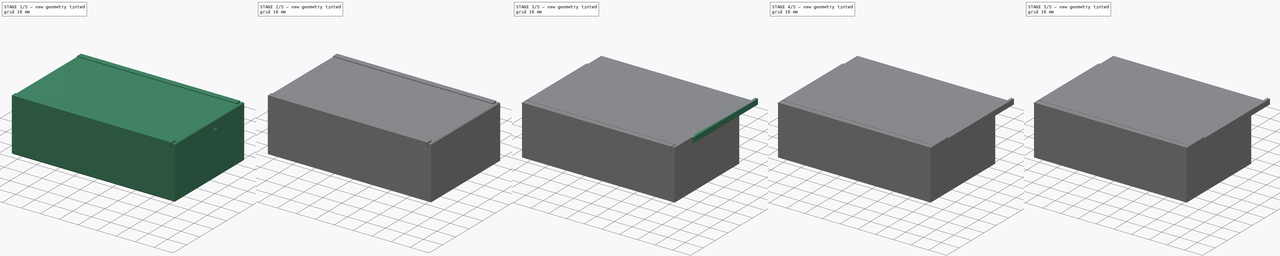
[diagram: build sequence overview — one tinted view per stage of 5, left to right]
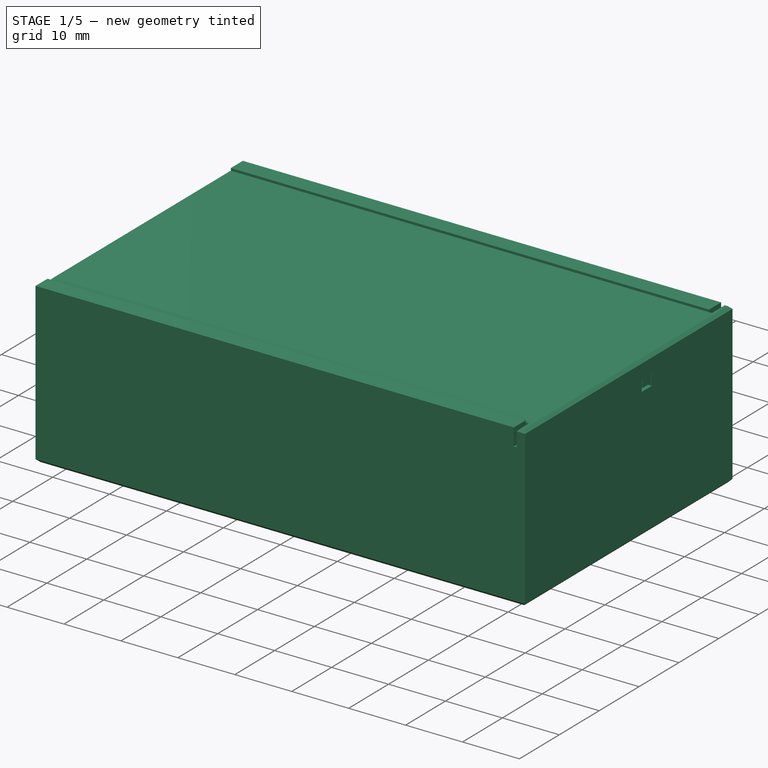
[diagram: stage 1 of 5 — iso view after this stage's code; geometry added in this stage tinted green]
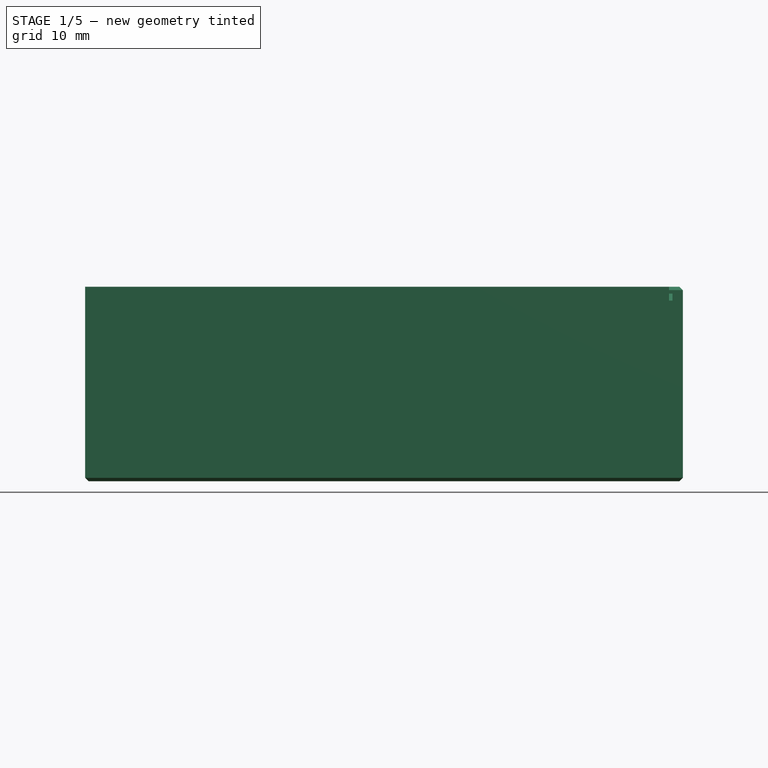
[diagram: stage 1 of 5 — front view after this stage's code; geometry added in this stage tinted green]
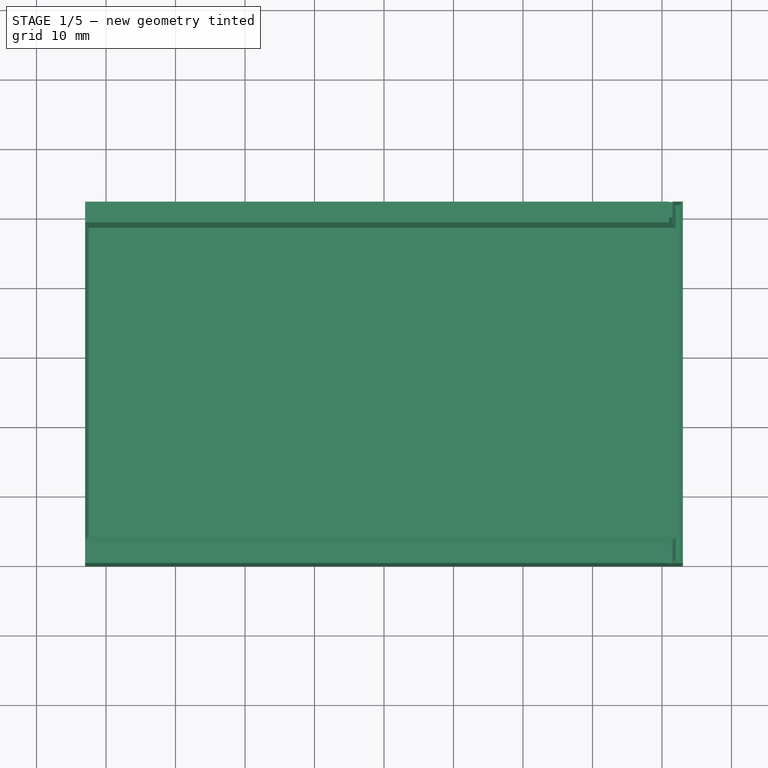
[diagram: stage 1 of 5 — top view after this stage's code; geometry added in this stage tinted green]
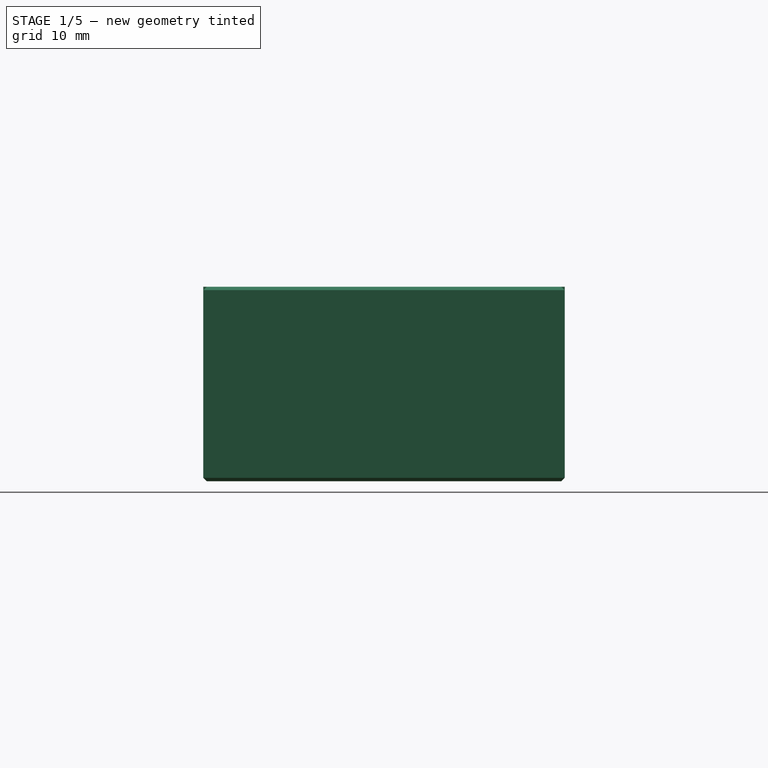
[diagram: stage 1 of 5 — right view after this stage's code; geometry added in this stage tinted green]
FCSTD DOCUMENT  (FreeCAD 0.16R6706 (Git))
Label: ThreeJackCase
License: All rights reserved
LicenseURL: http://en.wikipedia.org/wiki/All_rights_reserved
objects: Part::Feature×15, Sketcher::SketchObject×13, PartDesign::Pad×11, Part::MultiFuse×4, Part::Mirroring×2, PartDesign::Pocket×2, Part::Cut×2, Part::Chamfer×2
note: 64 computed .brp shape members not serialized (recipe doc carries the construction recipe); baked Part::Feature solids carry a one-line shape summary decoded from their .brp

FEATURE [Part::Feature] Cut001  label="partLidLessChamfer"
  shape: bbox 86 x 52 x 3 mm, 27 faces (baked)
FEATURE [Part::Chamfer] Chamfer  label="partLidLessBar"
  Base = -> Cut001
  Edges = 8 edges r=0.5: [Edge1,Edge13,Edge31,Edge32,Edge35,Edge39,Edge41,Edge44]
FEATURE [Part::Feature] Fusion001004001  label="partBaseLessChamfer"
  shape: bbox 86 x 52 x 28 mm, 126 faces (baked)
FEATURE [Part::Chamfer] Chamfer001  label="partBaseLessBarSlot"
  Base = -> Fusion001004001
  Edges = 16 edges r=0.5: [Edge17,Edge26,Edge337,Edge338,Edge339,Edge340,Edge341,Edge342,Edge343,Edge344,Edge345,Edge346,Edge347,Edge348,Edge349,Edge350]
FEATURE [Part::Feature] Pad003003004002002001  label="partlidBar"
  Placement = pos=(0,0,23.55) rot=(0,0,1;0rad)
  shape: bbox 73 x 2 x 3.5 mm, 6 faces (baked)
FEATURE [Part::MultiFuse] Fusion001004002
  Shapes = -> [Chamfer,Pad003003004002002001]
FEATURE [Part::Feature] Fusion001004002001  label="partLidComplete"
  shape: bbox 86 x 52 x 4.45 mm, 40 faces (baked)
FEATURE [Sketcher::SketchObject] Sketch014  label="barSlot"
  Placement = pos=(0,0,0) rot=(0.57735,0.57735,0.57735;2.0944rad)
  sketch-geometry (4):
    g0: LineSegment StartX=-10.75 StartY=25 StartZ=0 EndX=-8.25 EndY=25 EndZ=0
    g1: LineSegment StartX=-8.25 StartY=25 StartZ=0 EndX=-8.25 EndY=23 EndZ=0
    g2: LineSegment StartX=-8.25 StartY=23 StartZ=0 EndX=-10.75 EndY=23 EndZ=0
    g3: LineSegment StartX=-10.75 StartY=23 StartZ=0 EndX=-10.75 EndY=25 EndZ=0
  constraints (12):
    c: Coincident(g0,g1)
    c: Coincident(g1,g2)
    c: Coincident(g2,g3)
    c: Coincident(g3,g0)
    c: Horizontal(g0)
    c: Horizontal(g2)
    c: Vertical(g1)
    c: Vertical(g3)
    c: DistanceY(g1,g1) = 2
    c: DistanceX(g0,g0) = 2.5
    c: DistanceY(g-1,g2) = 23
    c: DistanceX(g2,g-1) = 10.75
FEATURE [PartDesign::Pad] Pad003003004002002002
  Length = 5
  Length2 = 100
  Placement = pos=(0,0,0) rot=(0.57735,0.57735,0.57735;2.0944rad)
  Sketch = -> Sketch014
  Type = 0
FEATURE [Part::Feature] Pad003003004002002002001  label="partBarSlotCutter"
  Placement = pos=(39,0,0) rot=(0.57735,0.57735,0.57735;2.0944rad)
  shape: bbox 5 x 2.5 x 2 mm, 6 faces (baked)
FEATURE [Part::Cut] Cut002  label="partBaseComplete"
  Base = -> Chamfer001
  Tool = -> Pad003003004002002002001
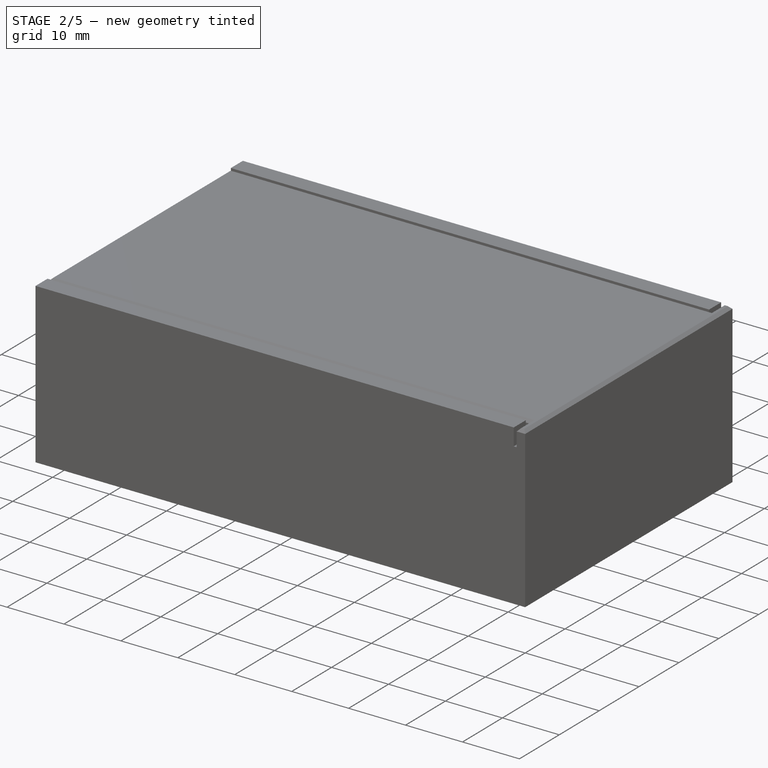
[diagram: stage 2 of 5 — iso view after this stage's code; geometry added in this stage tinted green]
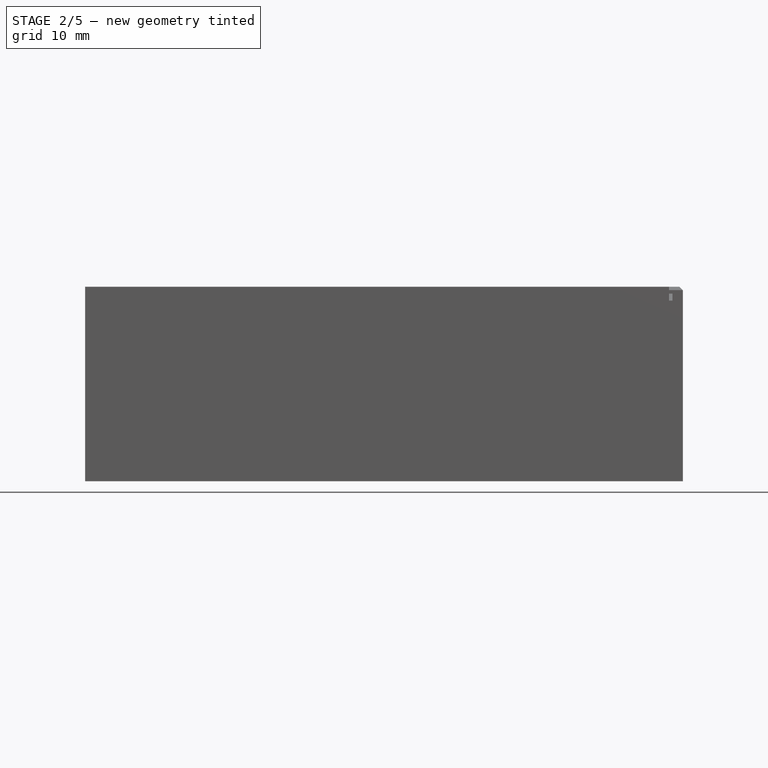
[diagram: stage 2 of 5 — front view after this stage's code; geometry added in this stage tinted green]
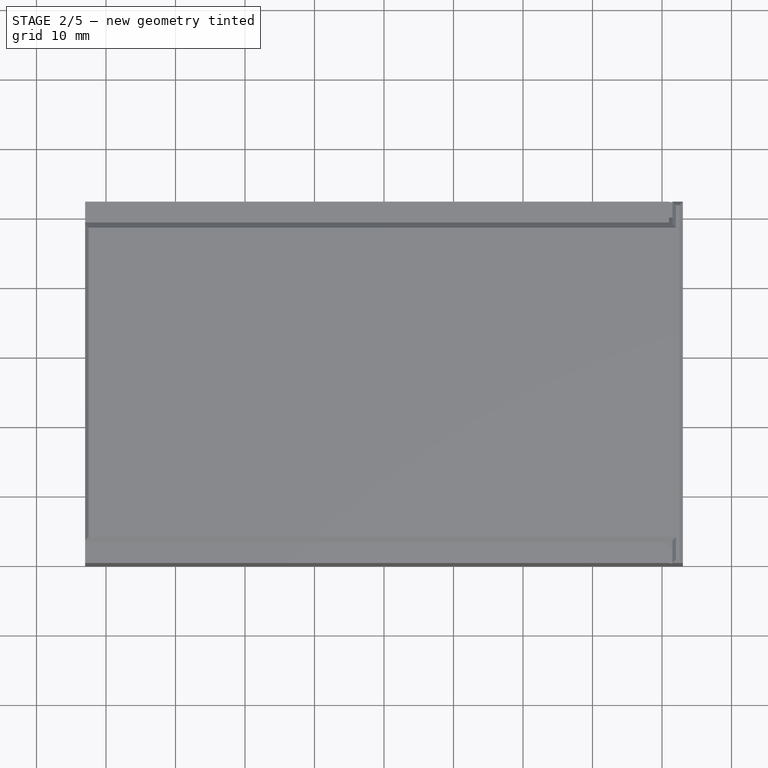
[diagram: stage 2 of 5 — top view after this stage's code; geometry added in this stage tinted green]
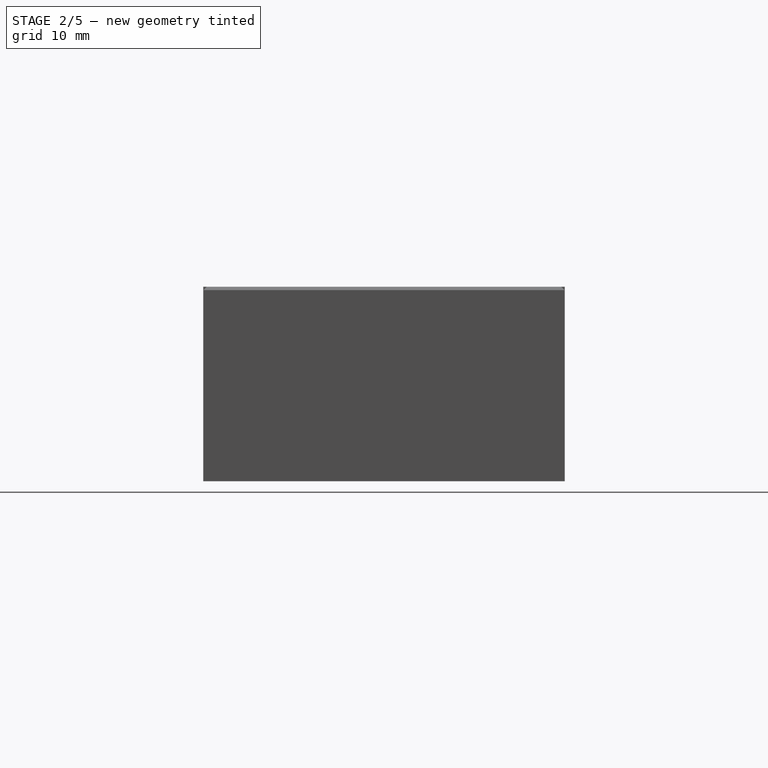
[diagram: stage 2 of 5 — right view after this stage's code; geometry added in this stage tinted green]
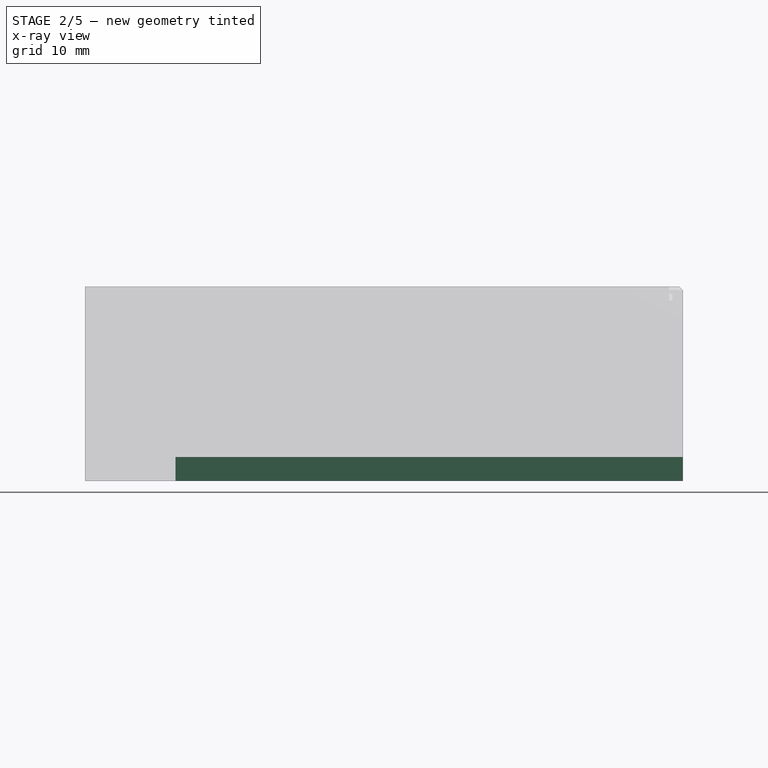
[diagram: stage 2 of 5 — x-ray composite at the front view; earlier geometry ghosted, this stage's added geometry solid]
FEATURE [Part::Feature] Fusion001  label="partJackHolder001"
  shape: bbox 25 x 22.5 x 18 mm, 34 faces (baked)
FEATURE [Part::Feature] Fusion001001  label="partJackHolder002"
  Placement = pos=(-25,0,0) rot=(0,0,1;0rad)
  shape: bbox 25 x 22.5 x 18 mm, 34 faces (baked)
FEATURE [Part::Feature] Fusion001002  label="partJackHolder003"
  Placement = pos=(25,0,0) rot=(0,0,1;0rad)
  shape: bbox 25 x 22.5 x 18 mm, 34 faces (baked)
FEATURE [Part::MultiFuse] Fusion001003  label="partJackHolders"
  Shapes = -> [Fusion001,Fusion001001,Fusion001002]
FEATURE [Part::Feature] Pad003003001  label="partRailFront"
  Placement = pos=(-1,0,0) rot=(0.57735,0.57735,0.57735;2.0944rad)
  shape: bbox 84 x 3 x 5 mm, 11 faces (baked)
FEATURE [Part::Mirroring] Part__Mirroring001  label="partRailBack"
  Base = (0,0,0)
  Normal = (0,1,0)
  Placement = pos=(0,-28,0) rot=(0,0,1;0rad)
  Source = -> Pad003003001
FEATURE [Part::MultiFuse] Fusion001004
  Shapes = -> [Pocket001,Pad003003004001,Fusion001003,Part__Mirroring001,Pad003003001]
FEATURE [Sketcher::SketchObject] Sketch013
  sketch-geometry (4):
    g0: LineSegment StartX=-30 StartY=-8.5 StartZ=0 EndX=43 EndY=-8.5 EndZ=0
    g1: LineSegment StartX=43 StartY=-8.5 StartZ=0 EndX=43 EndY=-10.5 EndZ=0
    g2: LineSegment StartX=43 StartY=-10.5 StartZ=0 EndX=-30 EndY=-10.5 EndZ=0
    g3: LineSegment StartX=-30 StartY=-10.5 StartZ=0 EndX=-30 EndY=-8.5 EndZ=0
  constraints (12):
    c: Coincident(g0,g1)
    c: Coincident(g1,g2)
    c: Coincident(g2,g3)
    c: Coincident(g3,g0)
    c: Horizontal(g0)
    c: Horizontal(g2)
    c: Vertical(g1)
    c: Vertical(g3)
    c: DistanceY(g1,g1) = 2
    c: DistanceX(g0,g0) = 73
    c: DistanceY(g1,g-1) = 10.5
    c: DistanceX(g-1,g1) = 43
FEATURE [PartDesign::Pad] Pad003003004002002
  Length = 3.5
  Length2 = 100
  Sketch = -> Sketch013
  Type = 0
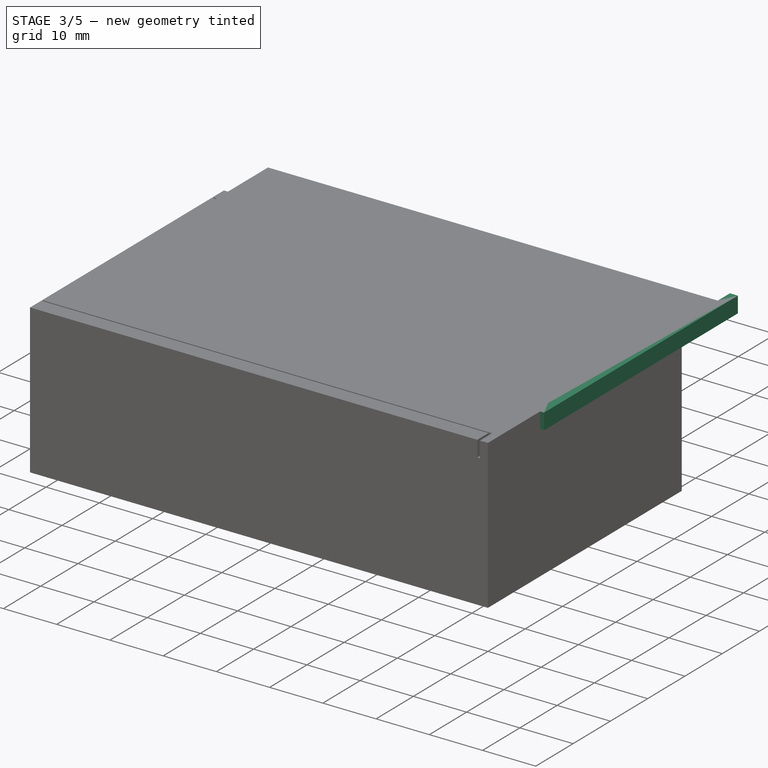
[diagram: stage 3 of 5 — iso view after this stage's code; geometry added in this stage tinted green]
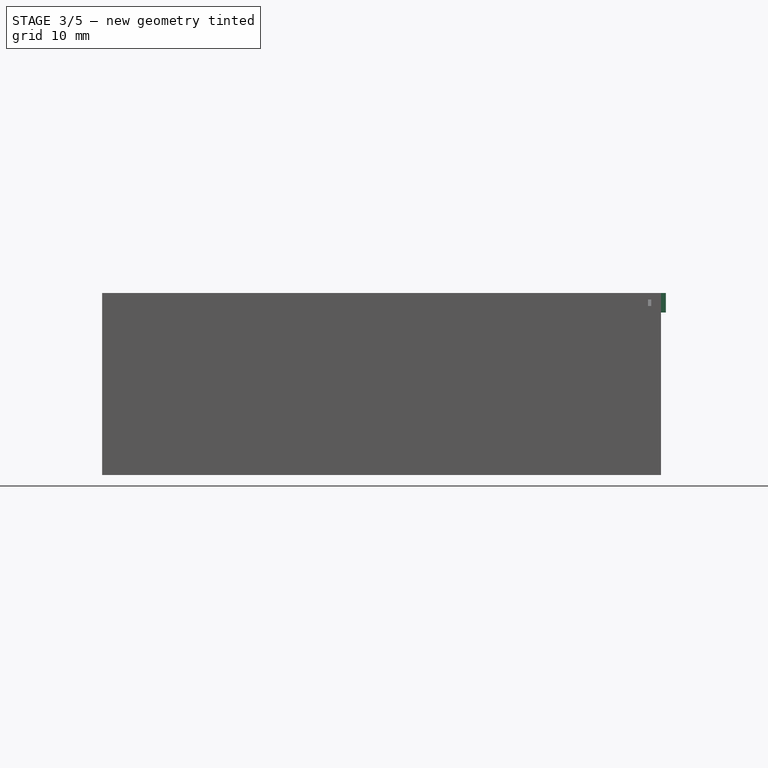
[diagram: stage 3 of 5 — front view after this stage's code; geometry added in this stage tinted green]
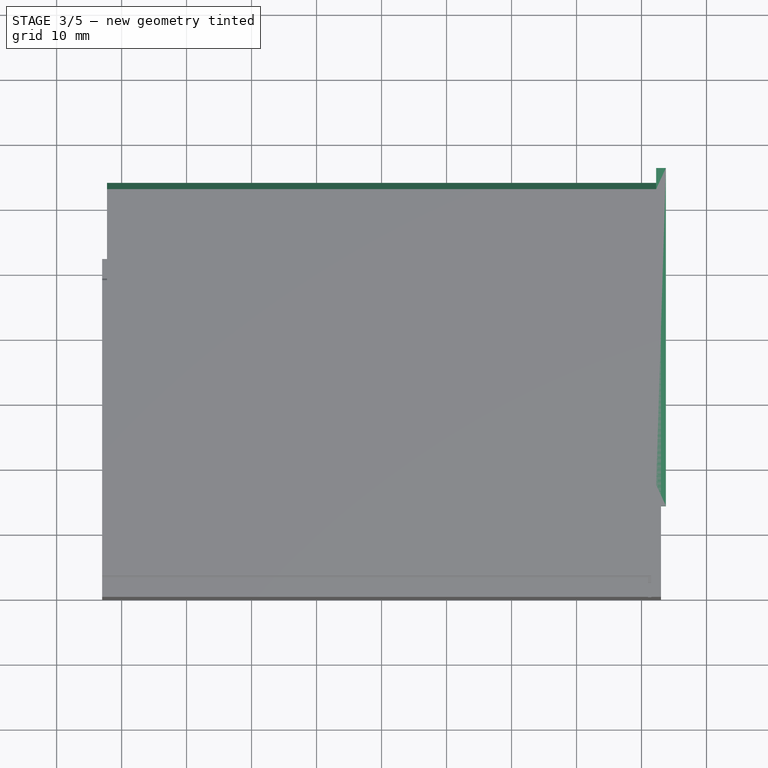
[diagram: stage 3 of 5 — top view after this stage's code; geometry added in this stage tinted green]
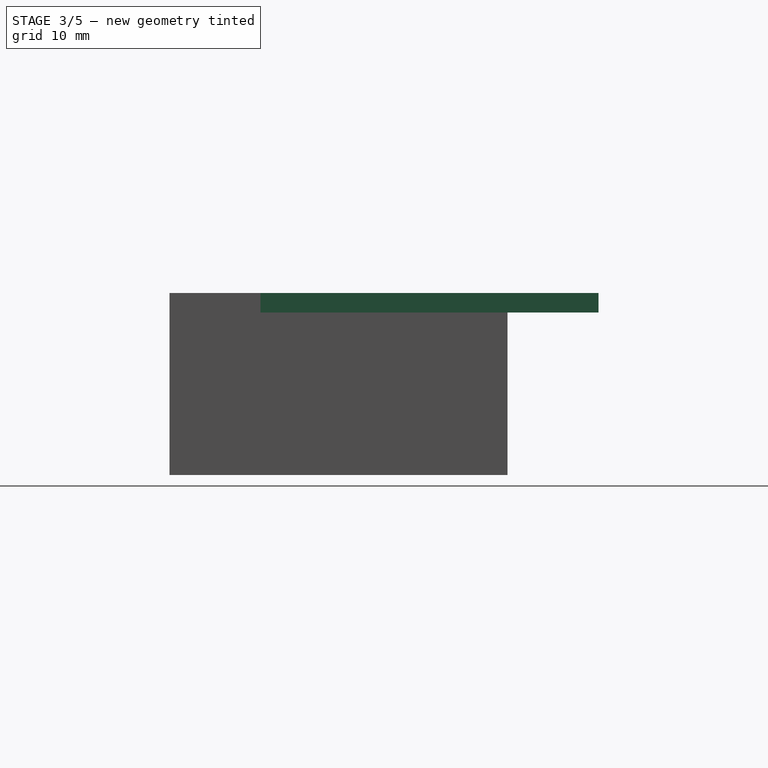
[diagram: stage 3 of 5 — right view after this stage's code; geometry added in this stage tinted green]
FEATURE [Sketcher::SketchObject] Sketch008  label="lidTop"
  Placement = pos=(0,0,0) rot=(0.57735,0.57735,0.57735;2.0944rad)
  sketch-geometry (8):
    g0: LineSegment StartX=22.75 StartY=28 StartZ=0 EndX=-22.75 EndY=28 EndZ=0
    g1: LineSegment StartX=-22.75 StartY=28 StartZ=0 EndX=-22.75 EndY=27 EndZ=0
    g2: LineSegment StartX=-22.75 StartY=27 StartZ=0 EndX=-23.75 EndY=26 EndZ=0
    g3: LineSegment StartX=-23.75 StartY=26 StartZ=0 EndX=-23.75 EndY=25 EndZ=0
    g4: LineSegment StartX=-23.75 StartY=25 StartZ=0 EndX=23.75 EndY=25 EndZ=0
    g5: LineSegment StartX=23.75 StartY=25 StartZ=0 EndX=23.75 EndY=26 EndZ=0
    g6: LineSegment StartX=23.75 StartY=26 StartZ=0 EndX=22.75 EndY=27 EndZ=0
    g7: LineSegment StartX=22.75 StartY=27 StartZ=0 EndX=22.75 EndY=28 EndZ=0
  constraints (24):
    c: Horizontal(g0)
    c: Coincident(g0,g1)
    c: Coincident(g1,g2)
    c: Coincident(g2,g3)
    c: Vertical(g3)
    c: Coincident(g3,g4)
    c: Horizontal(g4)
    c: Coincident(g4,g5)
    c: Vertical(g5)
    c: Coincident(g5,g6)
    c: Coincident(g6,g7)
    c: Vertical(g7)
    c: Coincident(g0,g7)
    c: Vertical(g1)
    c: Angle(g1,g2) = 2.35619
    c: Angle(g6,g7) = 2.35619
    c: DistanceY(g3,g3) = 1
    c: DistanceY(g2,g2) = 1
    c: DistanceY(g5,g5) = 1
    c: DistanceY(g6,g6) = 1
    c: DistanceY(g7,g7) = 1
    c: Symmetric(g4,g3,g-2)
    c: DistanceX(g4,g4) = 47.5
    c: DistanceY(g-1,g3) = 25
FEATURE [PartDesign::Pad] Pad003003002
  Length = 84.5
  Length2 = 100
  Midplane = true
  Placement = pos=(0,0,0) rot=(0.57735,0.57735,0.57735;2.0944rad)
  Sketch = -> Sketch008
  Type = 0
FEATURE [Sketcher::SketchObject] Sketch009  label="lidCap"
  ExternalGeometry = -> [Pad003003002]
  Placement = pos=(42.25,0,0) rot=(0.57735,0.57735,0.57735;2.0944rad)
  Support = -> Pad003003002 [Face10]
  sketch-geometry (4):
    g0: LineSegment StartX=-26 StartY=28 StartZ=0 EndX=26 EndY=28 EndZ=0
    g1: LineSegment StartX=26 StartY=28 StartZ=0 EndX=26 EndY=25 EndZ=0
    g2: LineSegment StartX=26 StartY=25 StartZ=0 EndX=-26 EndY=25 EndZ=0
    g3: LineSegment StartX=-26 StartY=25 StartZ=0 EndX=-26 EndY=28 EndZ=0
  constraints (12):
    c: Coincident(g0,g1)
    c: Coincident(g1,g2)
    c: Coincident(g2,g3)
    c: Coincident(g3,g0)
    c: Horizontal(g0)
    c: Horizontal(g2)
    c: Vertical(g1)
    c: Vertical(g3)
    c: Symmetric(g1,g2,g-2)
    c: DistanceX(g2,g2) = 52
    c: PointOnObject(g1,g-3)
    c: PointOnObject(g0,g-4)
FEATURE [PartDesign::Pad] Pad003003003
  Length = 1.5
  Length2 = 100
  Placement = pos=(0,0,0) rot=(0.57735,0.57735,0.57735;2.0944rad)
  Sketch = -> Sketch009
  Type = 0
FEATURE [Part::Feature] Pocket002001  label="lidLessNotch"
  Placement = pos=(-0.75,-14,0) rot=(0.57735,0.57735,0.57735;2.0944rad)
  shape: bbox 86 x 52 x 3 mm, 21 faces (baked)
FEATURE [Sketcher::SketchObject] Sketch011  label="snap"
  Placement = pos=(0,0,0) rot=(-1,0,0;4.71239rad)
  sketch-geometry (8):
    g0: LineSegment StartX=-43 StartY=25 StartZ=0 EndX=-41 EndY=25 EndZ=0
    g1: LineSegment StartX=-41 StartY=25 StartZ=0 EndX=-40 EndY=26 EndZ=0
    g2: LineSegment StartX=-40 StartY=26 StartZ=0 EndX=-39 EndY=26 EndZ=0
    g3: LineSegment StartX=-39 StartY=26 StartZ=0 EndX=-38 EndY=25 EndZ=0
    g4: LineSegment StartX=-38 StartY=25 StartZ=0 EndX=-38 EndY=24 EndZ=0
    g5: LineSegment StartX=-38 StartY=24 StartZ=0 EndX=-41 EndY=21 EndZ=0
    g6: LineSegment StartX=-41 StartY=21 StartZ=0 EndX=-43 EndY=21 EndZ=0
    g7: LineSegment StartX=-43 StartY=21 StartZ=0 EndX=-43 EndY=25 EndZ=0
  constraints (24):
    c: Horizontal(g0)
    c: Coincident(g0,g1)
    c: Coincident(g1,g2)
    c: Horizontal(g2)
    c: Coincident(g2,g3)
    c: Coincident(g3,g4)
    c: Vertical(g4)
    c: Coincident(g4,g5)
    c: Coincident(g5,g6)
    c: Coincident(g6,g7)
    c: Vertical(g7)
    c: Coincident(g0,g7)
    c: Horizontal(g6)
    c: Angle(g4,g5) = 2.35619
    c: Angle(g3,g4) = 2.35619
    c: Angle(g1,g0) = 2.35619
    c: DistanceX(g6,g6) = 2
    c: DistanceX(g0,g0) = 2
    c: DistanceX(g1,g1) = 1
    c: DistanceX(g2,g2) = 1
    c: DistanceX(g3,g3) = 1
    c: DistanceY(g4,g4) = 1
    c: DistanceX(g6,g-1) = 43
    c: DistanceY(g-1,g0) = 25
FEATURE [PartDesign::Pad] Pad003003004
  Length = 5
  Length2 = 100
  Midplane = true
  Placement = pos=(0,0,0) rot=(-1,0,0;4.71239rad)
  Sketch = -> Sketch011
  Type = 0
FEATURE [Part::Feature] Pad003003004001  label="partSnap"
  Placement = pos=(0,-14,-0.5) rot=(1,0,0;1.5708rad)
  shape: bbox 5 x 5 x 5 mm, 10 faces (baked)
FEATURE [Sketcher::SketchObject] Sketch012  label="notchCutout"
  Placement = pos=(0,0,0) rot=(-1,0,0;4.71239rad)
  sketch-geometry (8):
    g0: LineSegment StartX=-38 StartY=21 StartZ=0 EndX=-38 EndY=25 EndZ=0
    g1: LineSegment StartX=-38 StartY=25 StartZ=0 EndX=-39 EndY=26 EndZ=0
    g2: LineSegment StartX=-39 StartY=26 StartZ=0 EndX=-40 EndY=26 EndZ=0
    g3: LineSegment StartX=-40 StartY=26 StartZ=0 EndX=-41 EndY=25 EndZ=0
    g4: LineSegment StartX=-41 StartY=25 StartZ=0 EndX=-42 EndY=25 EndZ=0
    g5: LineSegment StartX=-42 StartY=25 StartZ=0 EndX=-43 EndY=26 EndZ=0
    g6: LineSegment StartX=-43 StartY=26 StartZ=0 EndX=-43 EndY=21 EndZ=0
    g7: LineSegment StartX=-43 StartY=21 StartZ=0 EndX=-38 EndY=21 EndZ=0
  constraints (24):
    c: Vertical(g0)
    c: Coincident(g0,g1)
    c: Coincident(g1,g2)
    c: Horizontal(g2)
    c: Coincident(g2,g3)
    c: Coincident(g3,g4)
    c: Horizontal(g4)
    c: Coincident(g4,g5)
    c: Coincident(g5,g6)
    c: Vertical(g6)
    c: Coincident(g6,g7)
    c: Horizontal(g7)
    c: Coincident(g0,g7)
    c: Angle(g2,g1) = 2.35619
    c: Angle(g3,g2) = 2.35619
    c: Angle(g4,g5) = 2.35619
    c: DistanceX(g1,g1) = 1
    c: DistanceX(g2,g2) = 1
    c: DistanceX(g3,g3) = 1
    c: DistanceX(g4,g4) = 1
    c: DistanceX(g5,g5) = 1
    c: DistanceY(g0,g0) = 4
    c: DistanceX(g5,g-1) = 43
    c: DistanceY(g-1,g0) = 25
FEATURE [PartDesign::Pad] Pad003003004002
  Length = 7
  Length2 = 100
  Midplane = true
  Placement = pos=(0,0,0) rot=(-1,0,0;4.71239rad)
  Sketch = -> Sketch012
  Type = 0
FEATURE [Part::Feature] Pad003003004002001  label="partNotchCutout"
  Placement = pos=(0,-14,0) rot=(1,0,0;1.5708rad)
  shape: bbox 5 x 7 x 5 mm, 10 faces (baked)
FEATURE [Part::Cut] Cut
  Base = -> Pocket002001
  Tool = -> Pad003003004002001
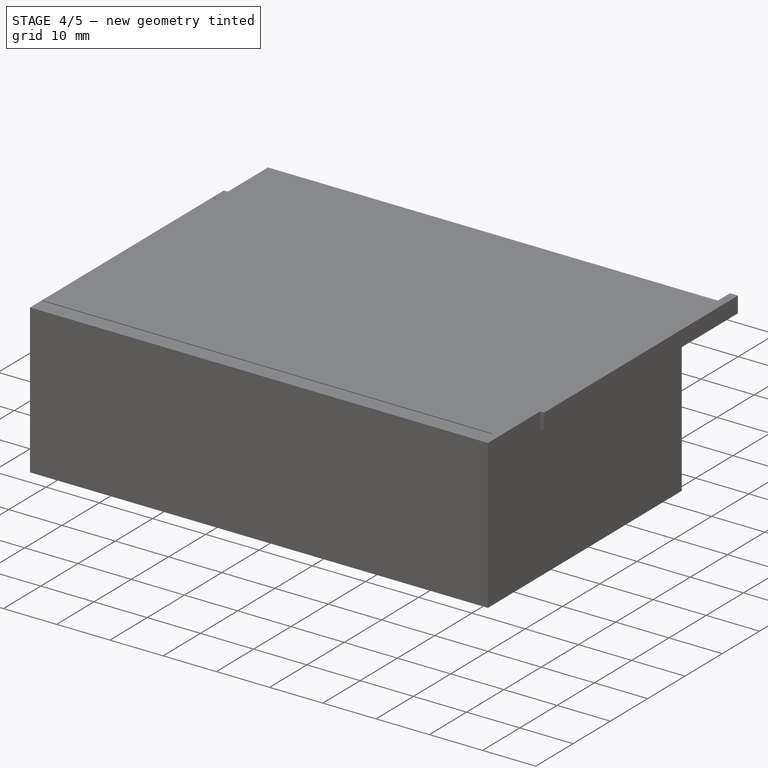
[diagram: stage 4 of 5 — iso view after this stage's code; geometry added in this stage tinted green]
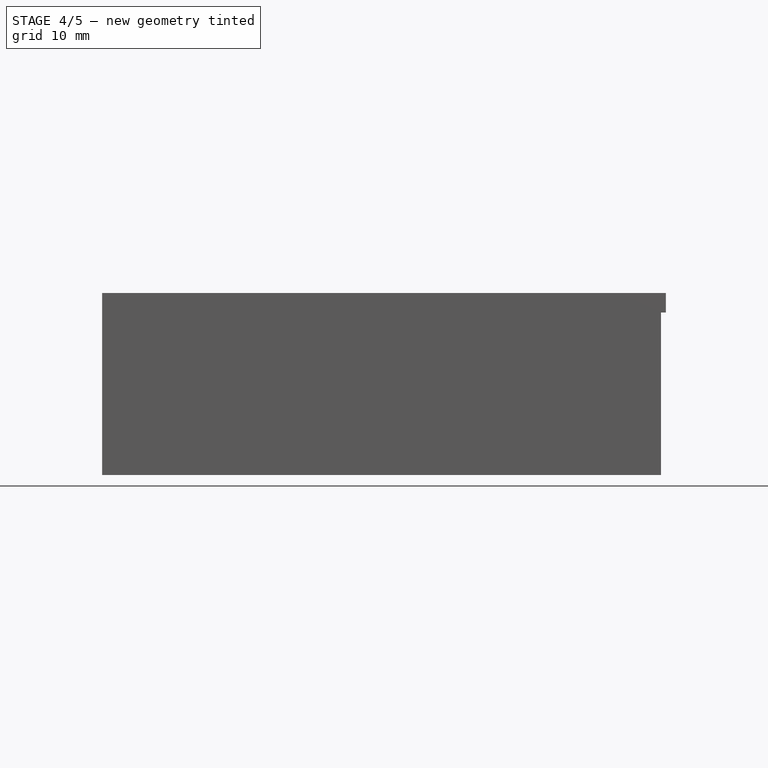
[diagram: stage 4 of 5 — front view after this stage's code; geometry added in this stage tinted green]
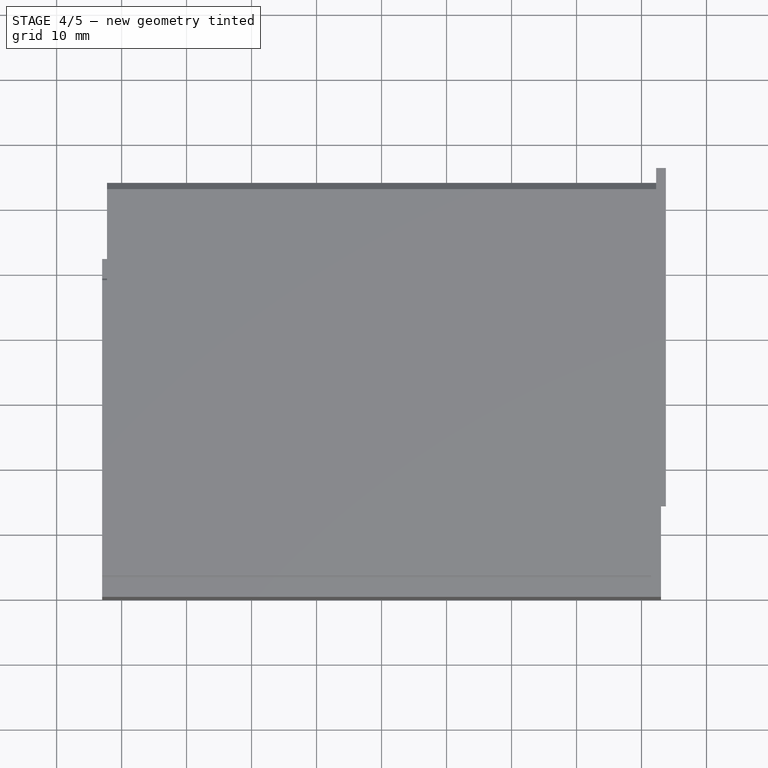
[diagram: stage 4 of 5 — top view after this stage's code; geometry added in this stage tinted green]
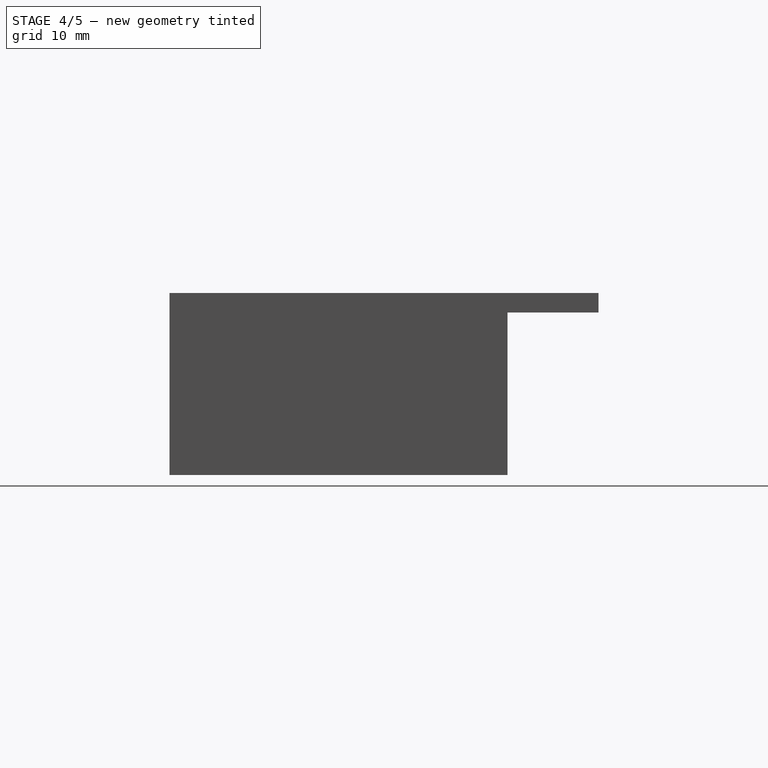
[diagram: stage 4 of 5 — right view after this stage's code; geometry added in this stage tinted green]
FEATURE [PartDesign::Pad] Pad
  Length = 25
  Length2 = 100
  Sketch = -> Sketch
  Type = 0
FEATURE [Sketcher::SketchObject] Sketch005  label="baseBottom"
  ExternalGeometry = -> [Pad]
  Placement = pos=(0,0,0) rot=(1,0,0;3.14159rad)
  Support = -> Pad [Face9]
  sketch-geometry (4):
    g0: LineSegment StartX=-43 StartY=40 StartZ=0 EndX=43 EndY=40 EndZ=0
    g1: LineSegment StartX=43 StartY=40 StartZ=0 EndX=43 EndY=-12 EndZ=0
    g2: LineSegment StartX=43 StartY=-12 StartZ=0 EndX=-43 EndY=-12 EndZ=0
    g3: LineSegment StartX=-43 StartY=-12 StartZ=0 EndX=-43 EndY=40 EndZ=0
  constraints (10):
    c: Coincident(g0,g1)
    c: Coincident(g1,g2)
    c: Coincident(g2,g3)
    c: Coincident(g3,g0)
    c: Horizontal(g0)
    c: Horizontal(g2)
    c: Vertical(g1)
    c: Vertical(g3)
    c: Coincident(g-3,g0)
    c: Coincident(g-4,g1)
FEATURE [PartDesign::Pad] Pad003002
  Length = 2
  Length2 = 100
  Reversed = true
  Sketch = -> Sketch005
  Type = 0
FEATURE [Part::Feature] Pocket001  label="partBasePlain"
  shape: bbox 86 x 52 x 25 mm, 28 faces (baked)
FEATURE [Sketcher::SketchObject] Sketch007  label="rail"
  Placement = pos=(0,0,0) rot=(0.57735,0.57735,0.57735;2.0944rad)
  sketch-geometry (9):
    g0: LineSegment StartX=-40 StartY=28 StartZ=0 EndX=-37 EndY=28 EndZ=0
    g1: LineSegment StartX=-37 StartY=28 StartZ=0 EndX=-37 EndY=27 EndZ=0
    g2: LineSegment StartX=-37 StartY=27 StartZ=0 EndX=-38 EndY=26 EndZ=0
    g3: LineSegment StartX=-38 StartY=26 StartZ=0 EndX=-38 EndY=25 EndZ=0
    g4: LineSegment StartX=-38 StartY=25 StartZ=0 EndX=-37 EndY=25 EndZ=0
    g5: LineSegment StartX=-37 StartY=25 StartZ=0 EndX=-37 EndY=24 EndZ=0
    g6: LineSegment StartX=-37 StartY=24 StartZ=0 EndX=-38 EndY=23 EndZ=0
    g7: LineSegment StartX=-38 StartY=23 StartZ=0 EndX=-40 EndY=23 EndZ=0
    g8: LineSegment StartX=-40 StartY=23 StartZ=0 EndX=-40 EndY=28 EndZ=0
  constraints (27):
    c: Horizontal(g0)
    c: Coincident(g0,g1)
    c: Vertical(g1)
    c: Coincident(g1,g2)
    c: Coincident(g2,g3)
    c: Vertical(g3)
    c: Coincident(g3,g4)
    c: Horizontal(g4)
    c: Coincident(g4,g5)
    c: Vertical(g5)
    c: Coincident(g5,g6)
    c: Coincident(g6,g7)
    c: Horizontal(g7)
    c: Coincident(g7,g8)
    c: Vertical(g8)
    c: Coincident(g0,g8)
    c: Angle(g5,g6) = 2.35619
    c: Angle(g1,g2) = 2.35619
    c: DistanceX(g7,g7) = 2
    c: DistanceY(g6,g6) = 1
    c: DistanceY(g5,g5) = 1
    c: DistanceY(g3,g3) = 1
    c: DistanceY(g2,g2) = 1
    c: DistanceY(g1,g1) = 1
    c: DistanceX(g4,g4) = 1
    c: DistanceY(g-1,g7) = 23
    c: DistanceX(g7,g-1) = 40
FEATURE [PartDesign::Pad] Pad003003
  Length = 84
  Length2 = 100
  Midplane = true
  Placement = pos=(0,0,0) rot=(0.57735,0.57735,0.57735;2.0944rad)
  Sketch = -> Sketch007
  Type = 0
FEATURE [Sketcher::SketchObject] Sketch010  label="lidBigCutout"
  ExternalGeometry = -> [Pad003003003]
  Placement = pos=(0,0,25) rot=(0.707107,0.707107,0;3.14159rad)
  Support = -> Pad003003003 [Face6]
  sketch-geometry (4):
    g0: LineSegment StartX=-21.75 StartY=42.25 StartZ=0 EndX=21.75 EndY=42.25 EndZ=0
    g1: LineSegment StartX=21.75 StartY=42.25 StartZ=0 EndX=21.75 EndY=-36.25 EndZ=0
    g2: LineSegment StartX=21.75 StartY=-36.25 StartZ=0 EndX=-21.75 EndY=-36.25 EndZ=0
    g3: LineSegment StartX=-21.75 StartY=-36.25 StartZ=0 EndX=-21.75 EndY=42.25 EndZ=0
  constraints (12):
    c: Coincident(g0,g1)
    c: Coincident(g1,g2)
    c: Coincident(g2,g3)
    c: Coincident(g3,g0)
    c: Horizontal(g0)
    c: Horizontal(g2)
    c: Vertical(g1)
    c: Vertical(g3)
    c: Symmetric(g1,g2,g-2)
    c: PointOnObject(g0,g-5)
    c: DistanceX(g-3,g2) = 2
    c: DistanceY(g-6,g2) = 6
FEATURE [PartDesign::Pocket] Pocket002
  Length = 2
  Placement = pos=(0,0,0) rot=(0.57735,0.57735,0.57735;2.0944rad)
  Sketch = -> Sketch010
  Type = 0
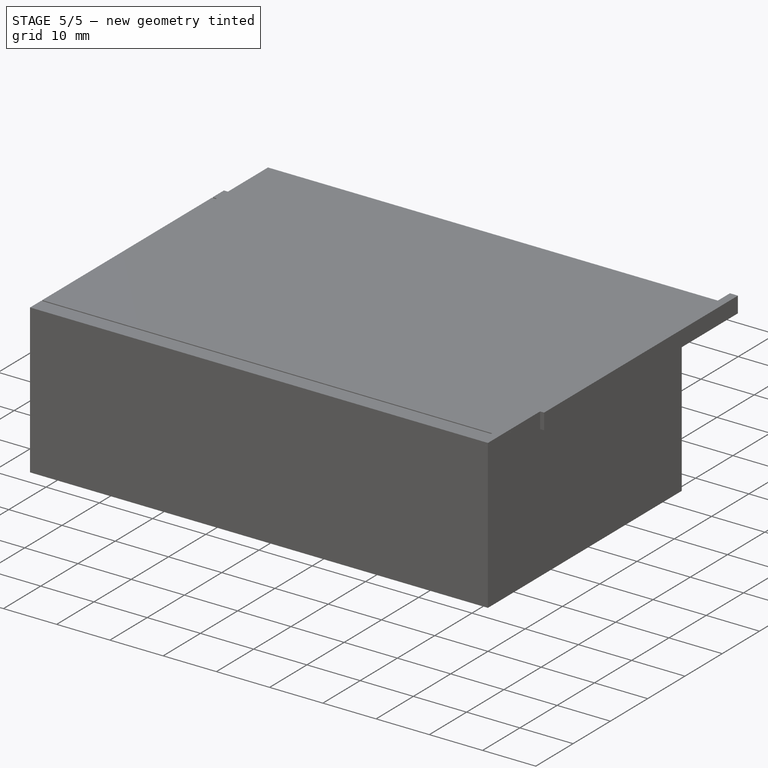
[diagram: stage 5 of 5 — iso view after this stage's code; geometry added in this stage tinted green]
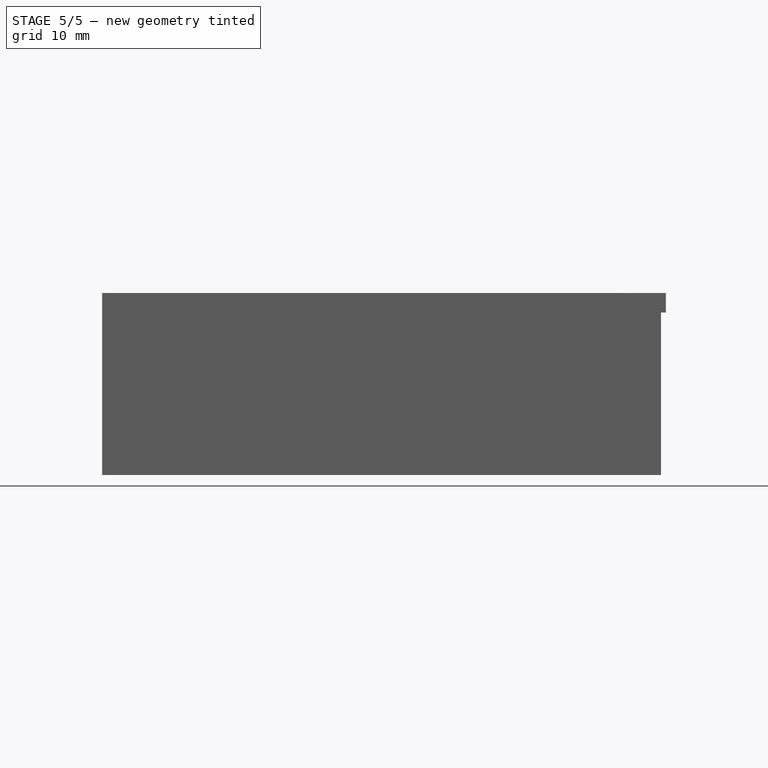
[diagram: stage 5 of 5 — front view after this stage's code; geometry added in this stage tinted green]
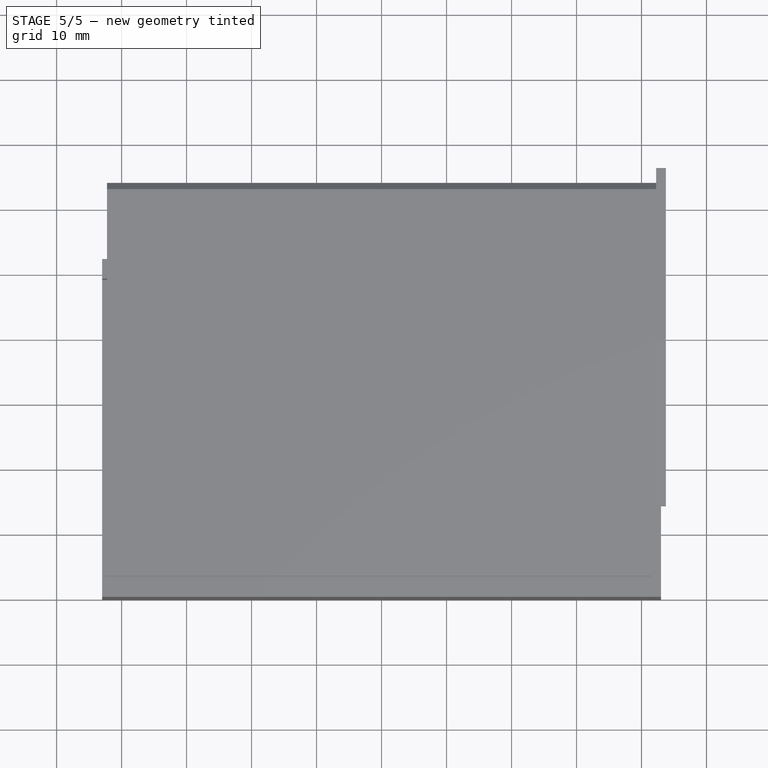
[diagram: stage 5 of 5 — top view after this stage's code; geometry added in this stage tinted green]
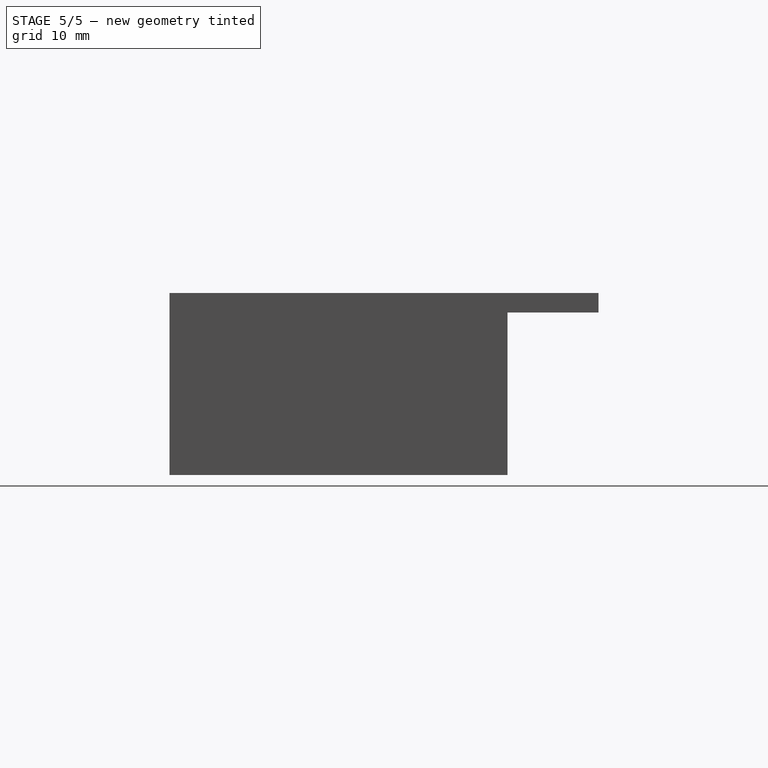
[diagram: stage 5 of 5 — right view after this stage's code; geometry added in this stage tinted green]
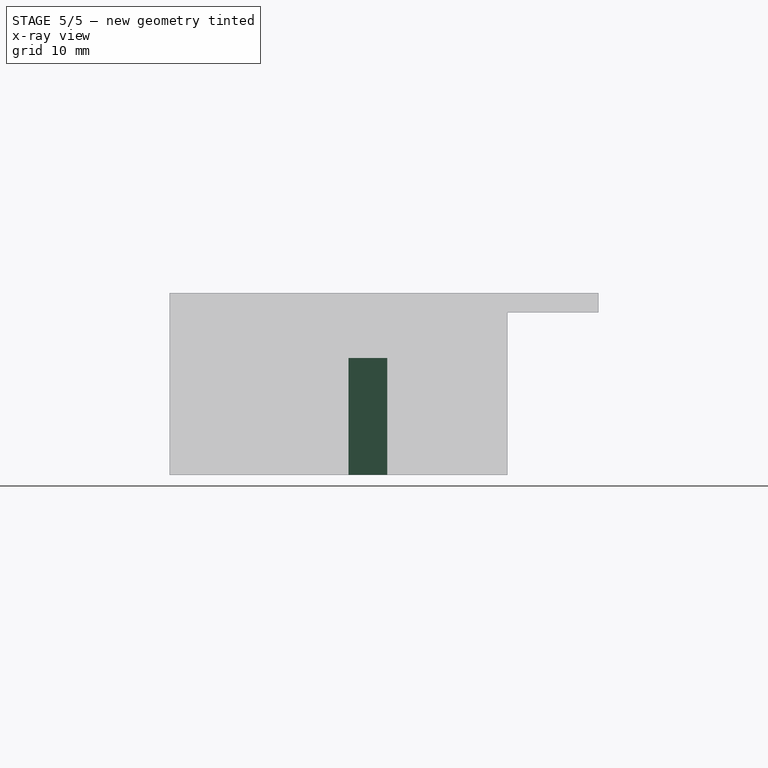
[diagram: stage 5 of 5 — x-ray composite at the right view; earlier geometry ghosted, this stage's added geometry solid]
FEATURE [Sketcher::SketchObject] Sketch  label="baseWalls"
  sketch-geometry (8):
    g0: LineSegment StartX=-41 StartY=10 StartZ=0 EndX=41 EndY=10 EndZ=0
    g1: LineSegment StartX=41 StartY=10 StartZ=0 EndX=41 EndY=-38 EndZ=0
    g2: LineSegment StartX=41 StartY=-38 StartZ=0 EndX=-41 EndY=-38 EndZ=0
    g3: LineSegment StartX=-41 StartY=-38 StartZ=0 EndX=-41 EndY=10 EndZ=0
    g4: LineSegment StartX=-43 StartY=12 StartZ=0 EndX=43 EndY=12 EndZ=0
    g5: LineSegment StartX=43 StartY=12 StartZ=0 EndX=43 EndY=-40 EndZ=0
    g6: LineSegment StartX=43 StartY=-40 StartZ=0 EndX=-43 EndY=-40 EndZ=0
    g7: LineSegment StartX=-43 StartY=-40 StartZ=0 EndX=-43 EndY=12 EndZ=0
  constraints (24):
    c: Coincident(g0,g1)
    c: Coincident(g1,g2)
    c: Coincident(g2,g3)
    c: Coincident(g3,g0)
    c: Horizontal(g0)
    c: Horizontal(g2)
    c: Vertical(g1)
    c: Vertical(g3)
    c: Symmetric(g0,g0,g-2)
    c: DistanceY(g-1,g0) = 10
    c: DistanceX(g0,g0) = 82
    c: DistanceY(g1,g-1) = 38
    c: Coincident(g4,g5)
    c: Coincident(g5,g6)
    c: Coincident(g6,g7)
    c: Coincident(g7,g4)
    c: Horizontal(g4)
    c: Horizontal(g6)
    c: Vertical(g5)
    c: Vertical(g7)
    c: DistanceY(g0,g4) = 2
    c: DistanceX(g4,g0) = 2
    c: DistanceY(g5,g1) = 2
    c: DistanceX(g1,g5) = 2
FEATURE [Sketcher::SketchObject] Sketch003  label="jackWalls"
  sketch-geometry (12):
    g0: LineSegment StartX=8 StartY=-8 StartZ=0 EndX=8 EndY=8 EndZ=0
    g1: LineSegment StartX=8 StartY=8 StartZ=0 EndX=-8 EndY=8 EndZ=0
    g2: LineSegment StartX=-8 StartY=8 StartZ=0 EndX=-8 EndY=-8 EndZ=0
    g3: LineSegment StartX=-8 StartY=-8 StartZ=0 EndX=-1.5 EndY=-8 EndZ=0
    g4: LineSegment StartX=-1.5 StartY=-8 StartZ=0 EndX=-1.5 EndY=-9.5 EndZ=0
    g5: LineSegment StartX=-1.5 StartY=-9.5 StartZ=0 EndX=1.5 EndY=-9.5 EndZ=0
    g6: LineSegment StartX=1.5 StartY=-9.5 StartZ=0 EndX=1.5 EndY=-8 EndZ=0
    g7: LineSegment StartX=1.5 StartY=-8 StartZ=0 EndX=8 EndY=-8 EndZ=0
    g8: LineSegment StartX=-10 StartY=10 StartZ=0 EndX=10 EndY=10 EndZ=0
    g9: LineSegment StartX=10 StartY=10 StartZ=0 EndX=10 EndY=-11 EndZ=0
    g10: LineSegment StartX=10 StartY=-11 StartZ=0 EndX=-10 EndY=-11 EndZ=0
    g11: LineSegment StartX=-10 StartY=-11 StartZ=0 EndX=-10 EndY=10 EndZ=0
  constraints (35):
    c: Coincident(g0,g1)
    c: Horizontal(g1)
    c: Coincident(g1,g2)
    c: Vertical(g2)
    c: Coincident(g2,g3)
    c: Horizontal(g3)
    c: Coincident(g3,g4)
    c: Coincident(g4,g5)
    c: Horizontal(g5)
    c: Coincident(g5,g6)
    c: Coincident(g6,g7)
    c: Horizontal(g7)
    c: Vertical(g0)
    c: Vertical(g6)
    c: Vertical(g4)
    c: Coincident(g7,g0)
    c: DistanceX(g1,g1) = 16
    c: DistanceX(g5,g5) = 3
    c: Symmetric(g5,g4,g-2)
    c: Symmetric(g0,g1,g-1)
    c: Equal(g0,g2)
    c: Equal(g2,g1)
    c: DistanceY(g6,g6) = 1.5
    c: Coincident(g8,g9)
    c: Coincident(g9,g10)
    c: Coincident(g10,g11)
    c: Coincident(g11,g8)
    c: Horizontal(g8)
    c: Horizontal(g10)
    c: Vertical(g9)
    c: Vertical(g11)
    c: Symmetric(g8,g8,g-2)
    c: DistanceX(g8,g1) = 2
    c: DistanceY(g1,g8) = 2
    c: DistanceY(g9,g0) = 3
FEATURE [PartDesign::Pad] Pad002
  Length = 6
  Length2 = 100
  Sketch = -> Sketch003
  Type = 0
FEATURE [Sketcher::SketchObject] Sketch004  label="boardSlot"
  sketch-geometry (8):
    g0: LineSegment StartX=-10.5 StartY=-8.5 StartZ=0 EndX=-8.5 EndY=-8.5 EndZ=0
    g1: LineSegment StartX=-8.5 StartY=-8.5 StartZ=0 EndX=-8.5 EndY=-6.5 EndZ=0
    g2: LineSegment StartX=-8.5 StartY=-6.5 StartZ=0 EndX=-12.5 EndY=-6.5 EndZ=0
    g3: LineSegment StartX=-12.5 StartY=-6.5 StartZ=0 EndX=-12.5 EndY=-12.5 EndZ=0
    g4: LineSegment StartX=-12.5 StartY=-12.5 StartZ=0 EndX=-8.5 EndY=-12.5 EndZ=0
    g5: LineSegment StartX=-8.5 StartY=-12.5 StartZ=0 EndX=-8.5 EndY=-10.5 EndZ=0
    g6: LineSegment StartX=-8.5 StartY=-10.5 StartZ=0 EndX=-10.5 EndY=-10.5 EndZ=0
    g7: LineSegment StartX=-10.5 StartY=-10.5 StartZ=0 EndX=-10.5 EndY=-8.5 EndZ=0
  constraints (24):
    c: Horizontal(g0)
    c: Coincident(g0,g1)
    c: Vertical(g1)
    c: Coincident(g1,g2)
    c: Horizontal(g2)
    c: Coincident(g2,g3)
    c: Vertical(g3)
    c: Coincident(g3,g4)
    c: Horizontal(g4)
    c: Coincident(g4,g5)
    c: Vertical(g5)
    c: Coincident(g5,g6)
    c: Horizontal(g6)
    c: Coincident(g6,g7)
    c: Vertical(g7)
    c: Coincident(g0,g7)
    c: DistanceX(g2,g0) = 2
    c: DistanceY(g0,g2) = 2
    c: DistanceY(g3,g6) = 2
    c: Equal(g6,g0)
    c: DistanceX(g6,g6) = 2
    c: DistanceY(g7,g7) = 2
    c: DistanceY(g0,g-1) = 8.5
    c: DistanceX(g0,g-1) = 10.5
FEATURE [PartDesign::Pad] Pad003
  Length = 18
  Length2 = 100
  Sketch = -> Sketch004
  Type = 0
FEATURE [Part::Feature] Pad002001  label="partJackWalls"
  shape: bbox 20 x 21 x 6 mm, 14 faces (baked)
FEATURE [Part::Feature] Pad003001  label="partBoardSlot"
  shape: bbox 4 x 6 x 18 mm, 10 faces (baked)
FEATURE [Part::Mirroring] Part__Mirroring  label="partBoardSlot (Mirror #1)"
  Base = (0,0,0)
  Normal = (1,0,0)
  Source = -> Pad003001
FEATURE [Part::MultiFuse] Fusion
  Shapes = -> [Pad002001,Part__Mirroring,Pad003001]
FEATURE [Sketcher::SketchObject] Sketch006  label="bottomJackHoles"
  Placement = pos=(0,0,2) rot=(0,0,1;0rad)
  Support = -> Pad003002 [Face14]
  sketch-geometry (12):
    g0: LineSegment StartX=-8 StartY=8 StartZ=0 EndX=8 EndY=8 EndZ=0
    g1: LineSegment StartX=8 StartY=8 StartZ=0 EndX=8 EndY=-8 EndZ=0
    g2: LineSegment StartX=8 StartY=-8 StartZ=0 EndX=-8 EndY=-8 EndZ=0
    g3: LineSegment StartX=-8 StartY=-8 StartZ=0 EndX=-8 EndY=8 EndZ=0
    g4: LineSegment StartX=-33 StartY=8 StartZ=0 EndX=-17 EndY=8 EndZ=0
    g5: LineSegment StartX=-17 StartY=8 StartZ=0 EndX=-17 EndY=-8 EndZ=0
    g6: LineSegment StartX=-17 StartY=-8 StartZ=0 EndX=-33 EndY=-8 EndZ=0
    g7: LineSegment StartX=-33 StartY=-8 StartZ=0 EndX=-33 EndY=8 EndZ=0
    g8: LineSegment StartX=17 StartY=8 StartZ=0 EndX=33 EndY=8 EndZ=0
    g9: LineSegment StartX=33 StartY=8 StartZ=0 EndX=33 EndY=-8 EndZ=0
    g10: LineSegment StartX=33 StartY=-8 StartZ=0 EndX=17 EndY=-8 EndZ=0
    g11: LineSegment StartX=17 StartY=-8 StartZ=0 EndX=17 EndY=8 EndZ=0
  constraints (35):
    c: Coincident(g0,g1)
    c: Coincident(g1,g2)
    c: Coincident(g2,g3)
    c: Coincident(g3,g0)
    c: Horizontal(g0)
    c: Horizontal(g2)
    c: Vertical(g1)
    c: Vertical(g3)
    c: Coincident(g4,g5)
    c: Coincident(g5,g6)
    c: Coincident(g6,g7)
    c: Coincident(g7,g4)
    c: Horizontal(g4)
    c: Horizontal(g6)
    c: Vertical(g5)
    c: Vertical(g7)
    c: Coincident(g8,g9)
    c: Coincident(g9,g10)
    c: Coincident(g10,g11)
    c: Coincident(g11,g8)
    c: Horizontal(g8)
    c: Horizontal(g10)
    c: Vertical(g9)
    c: Vertical(g11)
    c: DistanceX(g4,g4) = 16
    c: Equal(g4,g7)
    c: Equal(g7,g3)
    c: Equal(g3,g0)
    c: Equal(g0,g11)
    c: Equal(g11,g8)
    c: Symmetric(g1,g0,g-1)
    c: Symmetric(g9,g8,g-1)
    c: Symmetric(g6,g4,g-1)
    c: DistanceX(g2,g10) = 25
    c: DistanceX(g6,g2) = 25
FEATURE [PartDesign::Pocket] Pocket
  Length = 5
  Sketch = -> Sketch006
  Type = 1
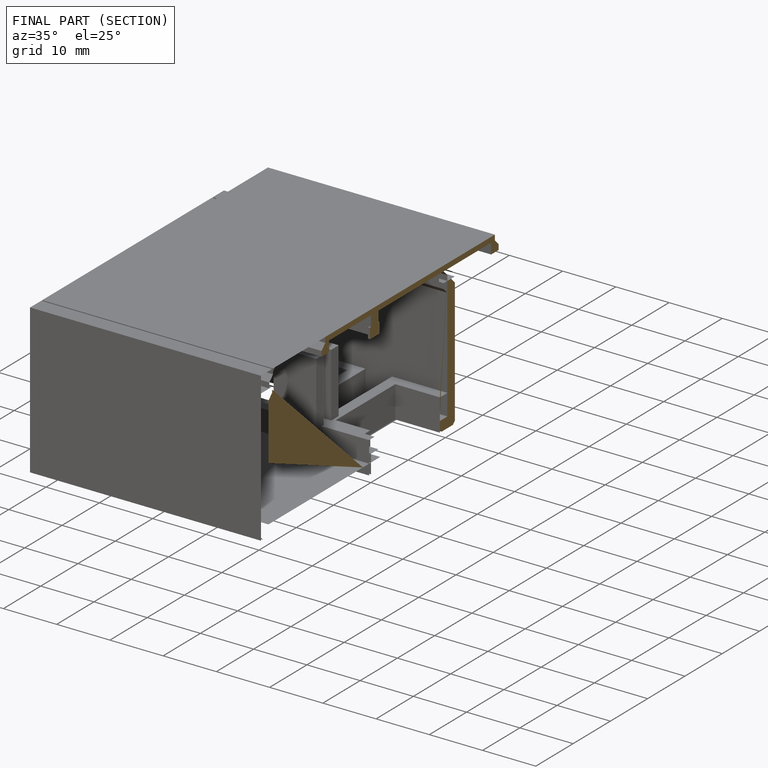
[diagram: finished part — half-section view (interior)]
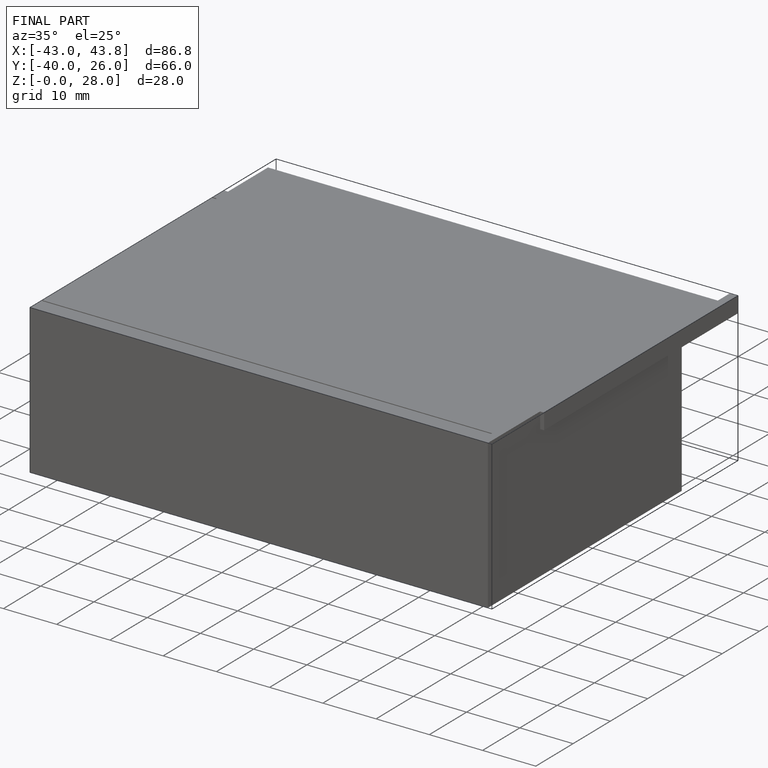
[diagram: finished part — iso view with bounding-box wireframe]
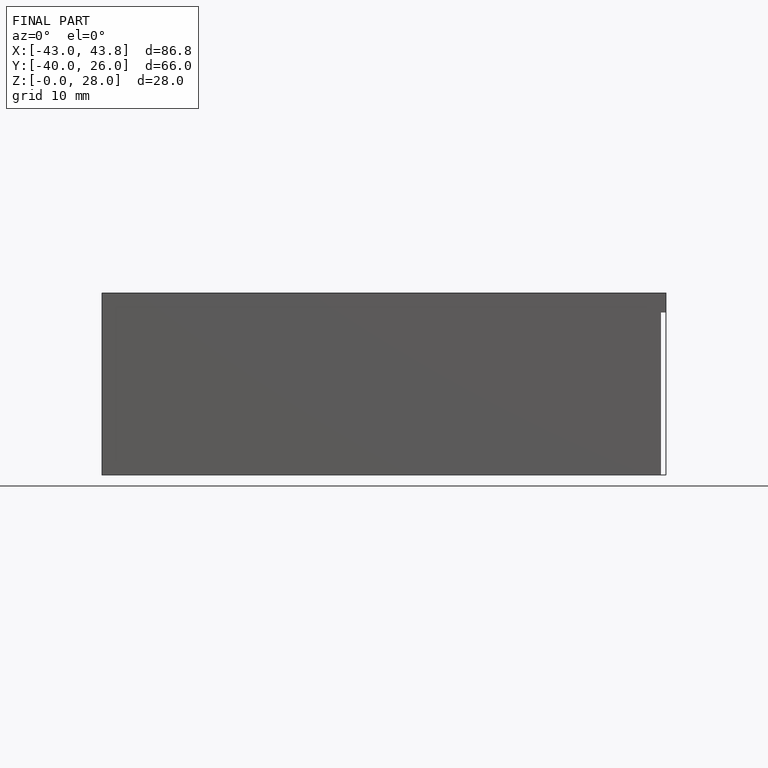
[diagram: finished part — front view with bounding-box wireframe]
